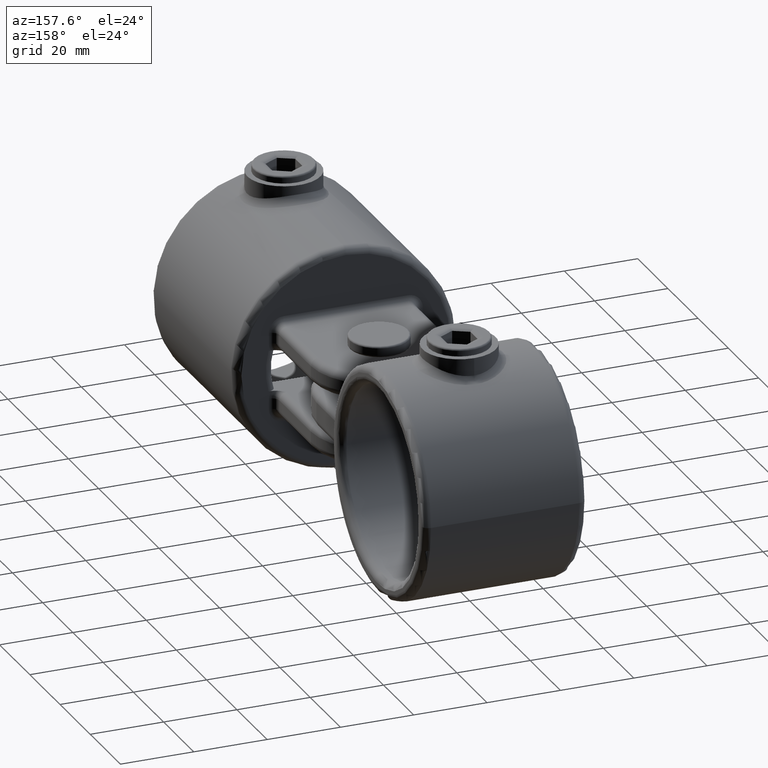
[diagram: clean part render]
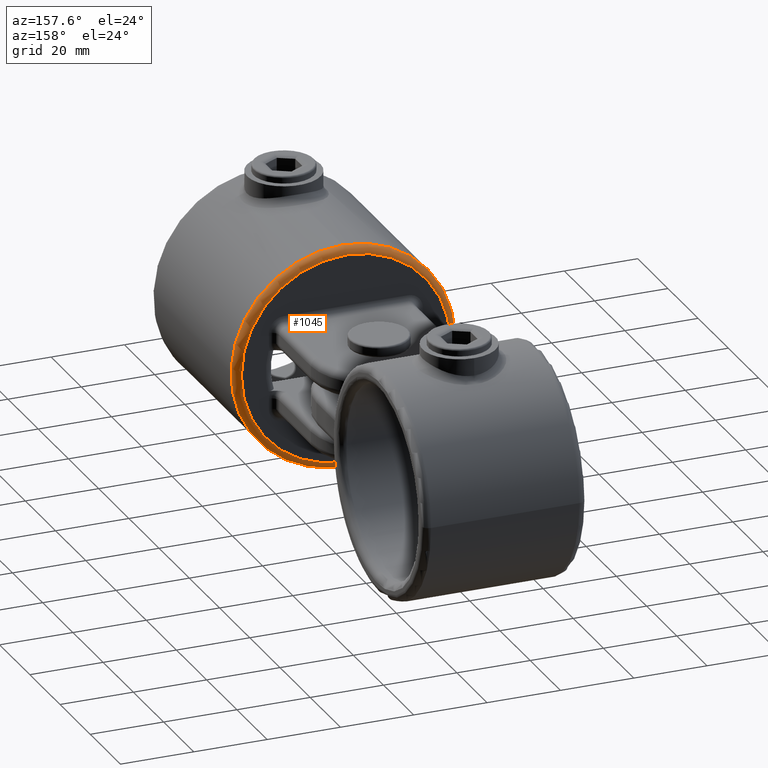
[diagram: same view with one face highlighted and labeled with its STEP entity id]
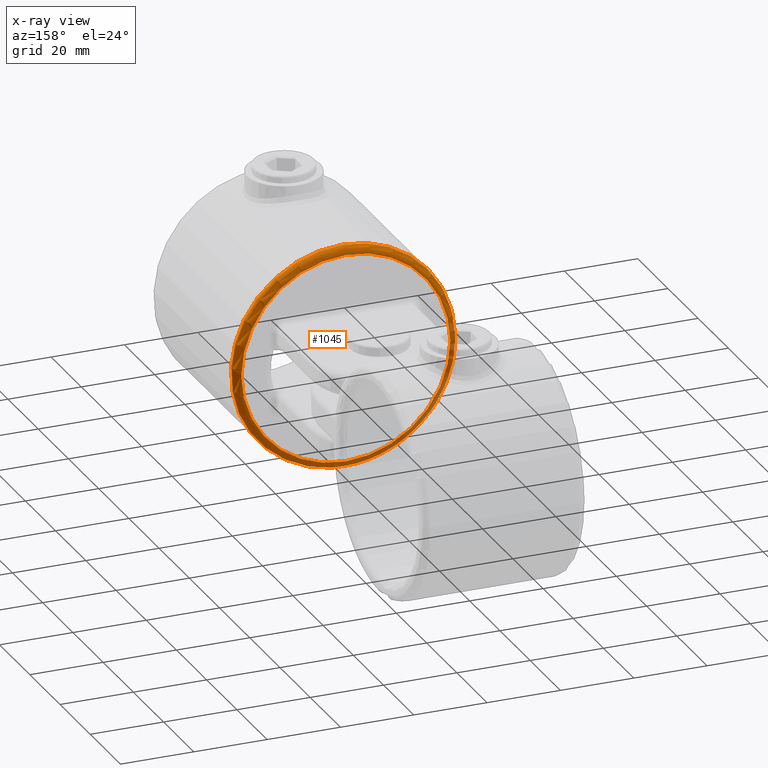
[diagram: x-ray of the same camera — body ghosted, the highlighted face saturated]
A machine part, auxiliary view. The second image highlights one B-rep face of the part: STEP entity #1045.
The next image is the same camera in x-ray: the body ghosted, the highlighted face saturated — about 17% of this face is hidden behind the body in this view.
In plain terms, the highlighted toroidal blend (fillet) surface has major radius 28.5 mm and minor (blend) radius 2 mm.
Its self-contained STEP definition (entity closure, byte-faithful):
#432 = FACE_OUTER_BOUND ( 'NONE', #4508, .T. ) ;
#530 = AXIS2_PLACEMENT_3D ( 'NONE', #3405, #4995, #4199 ) ;
#839 = DIRECTION ( 'NONE',  ( 0.000000000000000000, 0.000000000000000000, 1.000000000000000000 ) ) ;
#1045 = ADVANCED_FACE ( 'NONE', ( #432, #3959 ), #4955, .T. ) ;
#1239 = CARTESIAN_POINT ( 'NONE',  ( 0.000000000000000000, 53.00000000000000000, 0.000000000000000000 ) ) ;
#1277 = DIRECTION ( 'NONE',  ( 0.000000000000000000, 0.000000000000000000, 1.000000000000000000 ) ) ;
#1363 = VERTEX_POINT ( 'NONE', #4613 ) ;
#1731 = AXIS2_PLACEMENT_3D ( 'NONE', #2019, #3242, #839 ) ;
#1747 = VERTEX_POINT ( 'NONE', #4208 ) ;
#2019 = CARTESIAN_POINT ( 'NONE',  ( 0.000000000000000000, 55.00000000000000000, 0.000000000000000000 ) ) ;
#3242 = DIRECTION ( 'NONE',  ( 0.000000000000000000, 1.000000000000000000, 0.000000000000000000 ) ) ;
#3283 = DIRECTION ( 'NONE',  ( 0.000000000000000000, 1.000000000000000000, 0.000000000000000000 ) ) ;
#3400 = ORIENTED_EDGE ( 'NONE', *, *, #4168, .F. ) ;
#3405 = CARTESIAN_POINT ( 'NONE',  ( 0.000000000000000000, 53.00000000000000000, 0.000000000000000000 ) ) ;
#3476 = EDGE_CURVE ( 'NONE', #1747, #1747, #4400, .T. ) ;
#3620 = EDGE_LOOP ( 'NONE', ( #3400 ) ) ;
#3688 = CIRCLE ( 'NONE', #1731, 28.49999999999999645 ) ;
#3959 = FACE_OUTER_BOUND ( 'NONE', #3620, .T. ) ;
#4058 = AXIS2_PLACEMENT_3D ( 'NONE', #1239, #3283, #1277 ) ;
#4168 = EDGE_CURVE ( 'NONE', #1363, #1363, #3688, .T. ) ;
#4199 = DIRECTION ( 'NONE',  ( 0.000000000000000000, 0.000000000000000000, 1.000000000000000000 ) ) ;
#4208 = CARTESIAN_POINT ( 'NONE',  ( 0.000000000000000000, 53.00000000000000000, 30.50000000000000000 ) ) ;
#4400 = CIRCLE ( 'NONE', #530, 30.50000000000000000 ) ;
#4508 = EDGE_LOOP ( 'NONE', ( #4617 ) ) ;
#4613 = CARTESIAN_POINT ( 'NONE',  ( 0.000000000000000000, 55.00000000000000000, 28.49999999999999645 ) ) ;
#4617 = ORIENTED_EDGE ( 'NONE', *, *, #3476, .F. ) ;
#4955 = TOROIDAL_SURFACE ( 'NONE', #4058, 28.49999999999999645, 2.000000000000000000 ) ;
#4995 = DIRECTION ( 'NONE',  ( -0.000000000000000000, -1.000000000000000000, -0.000000000000000000 ) ) ;